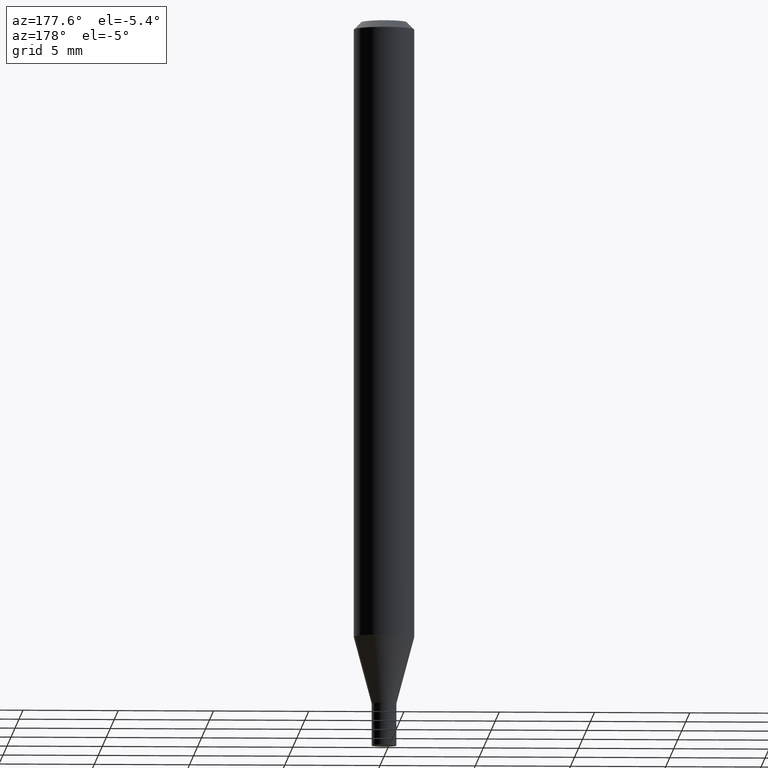
[diagram: clean part render]
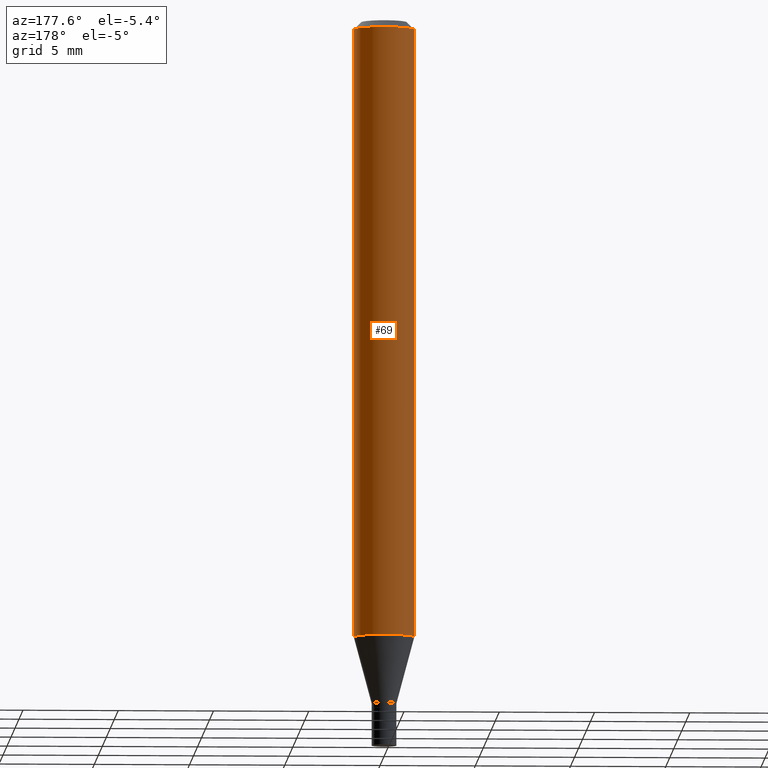
[diagram: same view with one face highlighted and labeled with its STEP entity id]
A machine part, auxiliary view. The second image highlights one B-rep face of the part: STEP entity #69.
In plain terms, the highlighted cylindrical surface (edge-blend (fillet) strip) has radius 1.5875 mm, axis along (-0, 0, 1).
Its self-contained STEP definition (entity closure, byte-faithful):
#9 = CARTESIAN_POINT ( 'NONE',  ( 3.117762711318311949E-29, -4.451338859026439617E-15, -1.274914120119951644 ) ) ;
#36 = EDGE_LOOP ( 'NONE', ( #433, #418, #132, #302 ) ) ;
#38 = DIRECTION ( 'NONE',  ( -2.445468806185136597E-29, 3.491481338843145583E-15, 1.000000000000000000 ) ) ;
#45 = DIRECTION ( 'NONE',  ( 1.000000000000000000, -6.982962677686262766E-15, 0.000000000000000000 ) ) ;
#69 = ADVANCED_FACE ( 'NONE', ( #276 ), #432, .T. ) ;
#77 = CARTESIAN_POINT ( 'NONE',  ( 0.06250000000000000000, -4.887774026381831286E-15, -1.274914120119951644 ) ) ;
#86 = LINE ( 'NONE', #228, #291 ) ;
#100 = CIRCLE ( 'NONE', #251, 0.06250000000000000000 ) ;
#103 = EDGE_CURVE ( 'NONE', #283, #127, #218, .T. ) ;
#127 = VERTEX_POINT ( 'NONE', #244 ) ;
#132 = ORIENTED_EDGE ( 'NONE', *, *, #183, .F. ) ;
#138 = DIRECTION ( 'NONE',  ( -2.445468806185136597E-29, 3.491481338843145583E-15, 1.000000000000000000 ) ) ;
#170 = DIRECTION ( 'NONE',  ( 1.000000000000000000, -6.982962677686266711E-15, 4.876176775795935793E-29 ) ) ;
#183 = EDGE_CURVE ( 'NONE', #127, #245, #277, .T. ) ;
#203 = DIRECTION ( 'NONE',  ( -2.445468806185136877E-29, 3.491481338843145188E-15, 1.000000000000000000 ) ) ;
#206 = EDGE_CURVE ( 'NONE', #283, #249, #100, .T. ) ;
#218 = LINE ( 'NONE', #461, #455 ) ;
#227 = DIRECTION ( 'NONE',  ( -2.445468806185136597E-29, 3.491481338843145583E-15, 1.000000000000000000 ) ) ;
#228 = CARTESIAN_POINT ( 'NONE',  ( -0.06250000000000000000, 4.440892098500626162E-16, -3.074334431409316114E-30 ) ) ;
#244 = CARTESIAN_POINT ( 'NONE',  ( 0.06250000000000000000, -4.888073874380388472E-16, -0.01499999999999999944 ) ) ;
#245 = VERTEX_POINT ( 'NONE', #438 ) ;
#248 = CARTESIAN_POINT ( 'NONE',  ( 0.000000000000000000, 0.000000000000000000, 0.000000000000000000 ) ) ;
#249 = VERTEX_POINT ( 'NONE', #294 ) ;
#251 = AXIS2_PLACEMENT_3D ( 'NONE', #9, #227, #45 ) ;
#276 = FACE_OUTER_BOUND ( 'NONE', #36, .T. ) ;
#277 = CIRCLE ( 'NONE', #376, 0.06250000000000000000 ) ;
#283 = VERTEX_POINT ( 'NONE', #77 ) ;
#291 = VECTOR ( 'NONE', #442, 39.37007874015748143 ) ;
#293 = EDGE_CURVE ( 'NONE', #249, #245, #86, .T. ) ;
#294 = CARTESIAN_POINT ( 'NONE',  ( -0.06250000000000000000, -4.007249649176377790E-15, -1.274914120119951644 ) ) ;
#302 = ORIENTED_EDGE ( 'NONE', *, *, #103, .F. ) ;
#316 = AXIS2_PLACEMENT_3D ( 'NONE', #248, #138, #170 ) ;
#342 = DIRECTION ( 'NONE',  ( 1.000000000000000000, -6.982962677686266711E-15, 0.000000000000000000 ) ) ;
#369 = CARTESIAN_POINT ( 'NONE',  ( 3.668203209277705088E-31, -5.237222008264718399E-17, -0.01499999999999999944 ) ) ;
#376 = AXIS2_PLACEMENT_3D ( 'NONE', #369, #38, #342 ) ;
#418 = ORIENTED_EDGE ( 'NONE', *, *, #293, .T. ) ;
#432 = CYLINDRICAL_SURFACE ( 'NONE', #316, 0.06250000000000000000 ) ;
#433 = ORIENTED_EDGE ( 'NONE', *, *, #206, .T. ) ;
#438 = CARTESIAN_POINT ( 'NONE',  ( -0.06250000000000000000, -1.807766329704480929E-15, -0.01499999999999999944 ) ) ;
#442 = DIRECTION ( 'NONE',  ( -2.445468806185136877E-29, 3.491481338843145188E-15, 1.000000000000000000 ) ) ;
#455 = VECTOR ( 'NONE', #203, 39.37007874015748143 ) ;
#461 = CARTESIAN_POINT ( 'NONE',  ( 0.06250000000000000000, -4.364351673553916694E-16, 3.047610484872459871E-30 ) ) ;